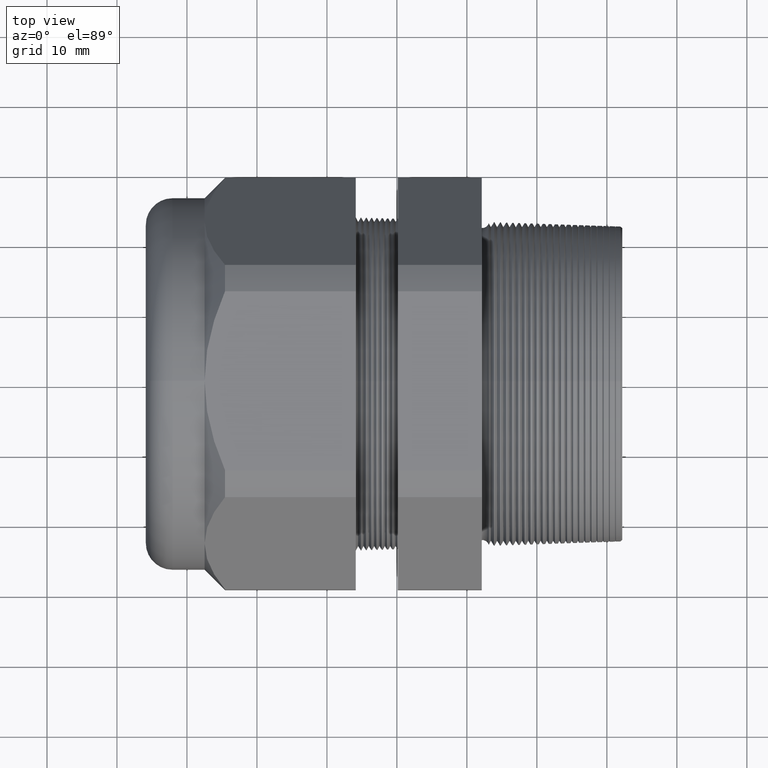
[diagram: clean part render]
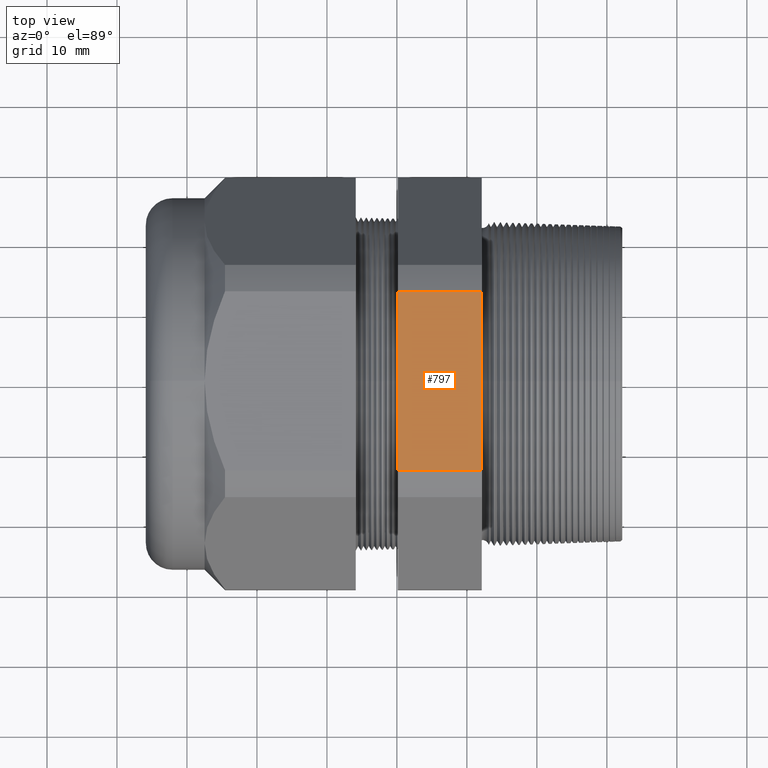
[diagram: same view with one face highlighted and labeled with its STEP entity id]
A machine part, top view. The second image highlights one B-rep face of the part: STEP entity #797.
In plain terms, the highlighted planar face has unit normal (0, 0, 1).
Its self-contained STEP definition (entity closure, byte-faithful):
#168 = VERTEX_POINT ( 'NONE', #2052 ) ;
#169 = VERTEX_POINT ( 'NONE', #2051 ) ;
#170 = EDGE_CURVE ( 'NONE', #168, #169, #2050, .T. ) ;
#797 = ADVANCED_FACE ( 'NONE', ( #2776 ), #2775, .T. ) ;
#798 = EDGE_CURVE ( 'NONE', #168, #1385, #2769, .T. ) ;
#800 = ORIENTED_EDGE ( 'NONE', *, *, #170, .F. ) ;
#801 = ORIENTED_EDGE ( 'NONE', *, *, #798, .T. ) ;
#802 = ORIENTED_EDGE ( 'NONE', *, *, #833, .F. ) ;
#804 = EDGE_LOOP ( 'NONE', ( #802, #800, #801, #1389 ) ) ;
#825 = VERTEX_POINT ( 'NONE', #2780 ) ;
#833 = EDGE_CURVE ( 'NONE', #169, #825, #2824, .T. ) ;
#1385 = VERTEX_POINT ( 'NONE', #3801 ) ;
#1387 = EDGE_CURVE ( 'NONE', #825, #1385, #3856, .T. ) ;
#1389 = ORIENTED_EDGE ( 'NONE', *, *, #1387, .F. ) ;
#2047 = DIRECTION ( 'NONE',  ( 0.0000000000000000000, -1.000000000000000000, 0.0000000000000000000 ) ) ;
#2048 = VECTOR ( 'NONE', #2047, 39.37007874015748100 ) ;
#2049 = CARTESIAN_POINT ( 'NONE',  ( -0.3100000000000000000, 2.089999999999999900, 1.044999999999999900 ) ) ;
#2050 = LINE ( 'NONE', #2049, #2048 ) ;
#2051 = CARTESIAN_POINT ( 'NONE',  ( -0.3100000000000000000, -0.5034471198646390800, 1.044999999999999900 ) ) ;
#2052 = CARTESIAN_POINT ( 'NONE',  ( -0.3100000000000000000, 0.5034471198646388600, 1.044999999999999900 ) ) ;
#2766 = DIRECTION ( 'NONE',  ( -1.000000000000000000, 0.0000000000000000000, 0.0000000000000000000 ) ) ;
#2767 = VECTOR ( 'NONE', #2766, 39.37007874015748100 ) ;
#2768 = CARTESIAN_POINT ( 'NONE',  ( 0.4800000000000000900, 0.5034471198646388600, 1.044999999999999900 ) ) ;
#2769 = LINE ( 'NONE', #2768, #2767 ) ;
#2771 = DIRECTION ( 'NONE',  ( 1.000000000000000000, 0.0000000000000000000, 0.0000000000000000000 ) ) ;
#2772 = DIRECTION ( 'NONE',  ( 0.0000000000000000000, 0.0000000000000000000, 1.000000000000000000 ) ) ;
#2773 = CARTESIAN_POINT ( 'NONE',  ( 0.4800000000000000900, -0.5034471198646388600, 1.044999999999999900 ) ) ;
#2774 = AXIS2_PLACEMENT_3D ( 'NONE', #2773, #2772, #2771 ) ;
#2775 = PLANE ( 'NONE',  #2774 ) ;
#2776 = FACE_OUTER_BOUND ( 'NONE', #804, .T. ) ;
#2780 = CARTESIAN_POINT ( 'NONE',  ( -0.7824400000000001400, -0.5034471198646390800, 1.044999999999999900 ) ) ;
#2821 = DIRECTION ( 'NONE',  ( -1.000000000000000000, 0.0000000000000000000, 0.0000000000000000000 ) ) ;
#2822 = VECTOR ( 'NONE', #2821, 39.37007874015748100 ) ;
#2823 = CARTESIAN_POINT ( 'NONE',  ( 0.4800000000000000900, -0.5034471198646390800, 1.044999999999999900 ) ) ;
#2824 = LINE ( 'NONE', #2823, #2822 ) ;
#3801 = CARTESIAN_POINT ( 'NONE',  ( -0.7824400000000001400, 0.5034471198646388600, 1.044999999999999900 ) ) ;
#3853 = DIRECTION ( 'NONE',  ( 0.0000000000000000000, 1.000000000000000000, 0.0000000000000000000 ) ) ;
#3854 = VECTOR ( 'NONE', #3853, 39.37007874015748100 ) ;
#3855 = CARTESIAN_POINT ( 'NONE',  ( -0.7824400000000001400, 2.089999999999999900, 1.044999999999999900 ) ) ;
#3856 = LINE ( 'NONE', #3855, #3854 ) ;